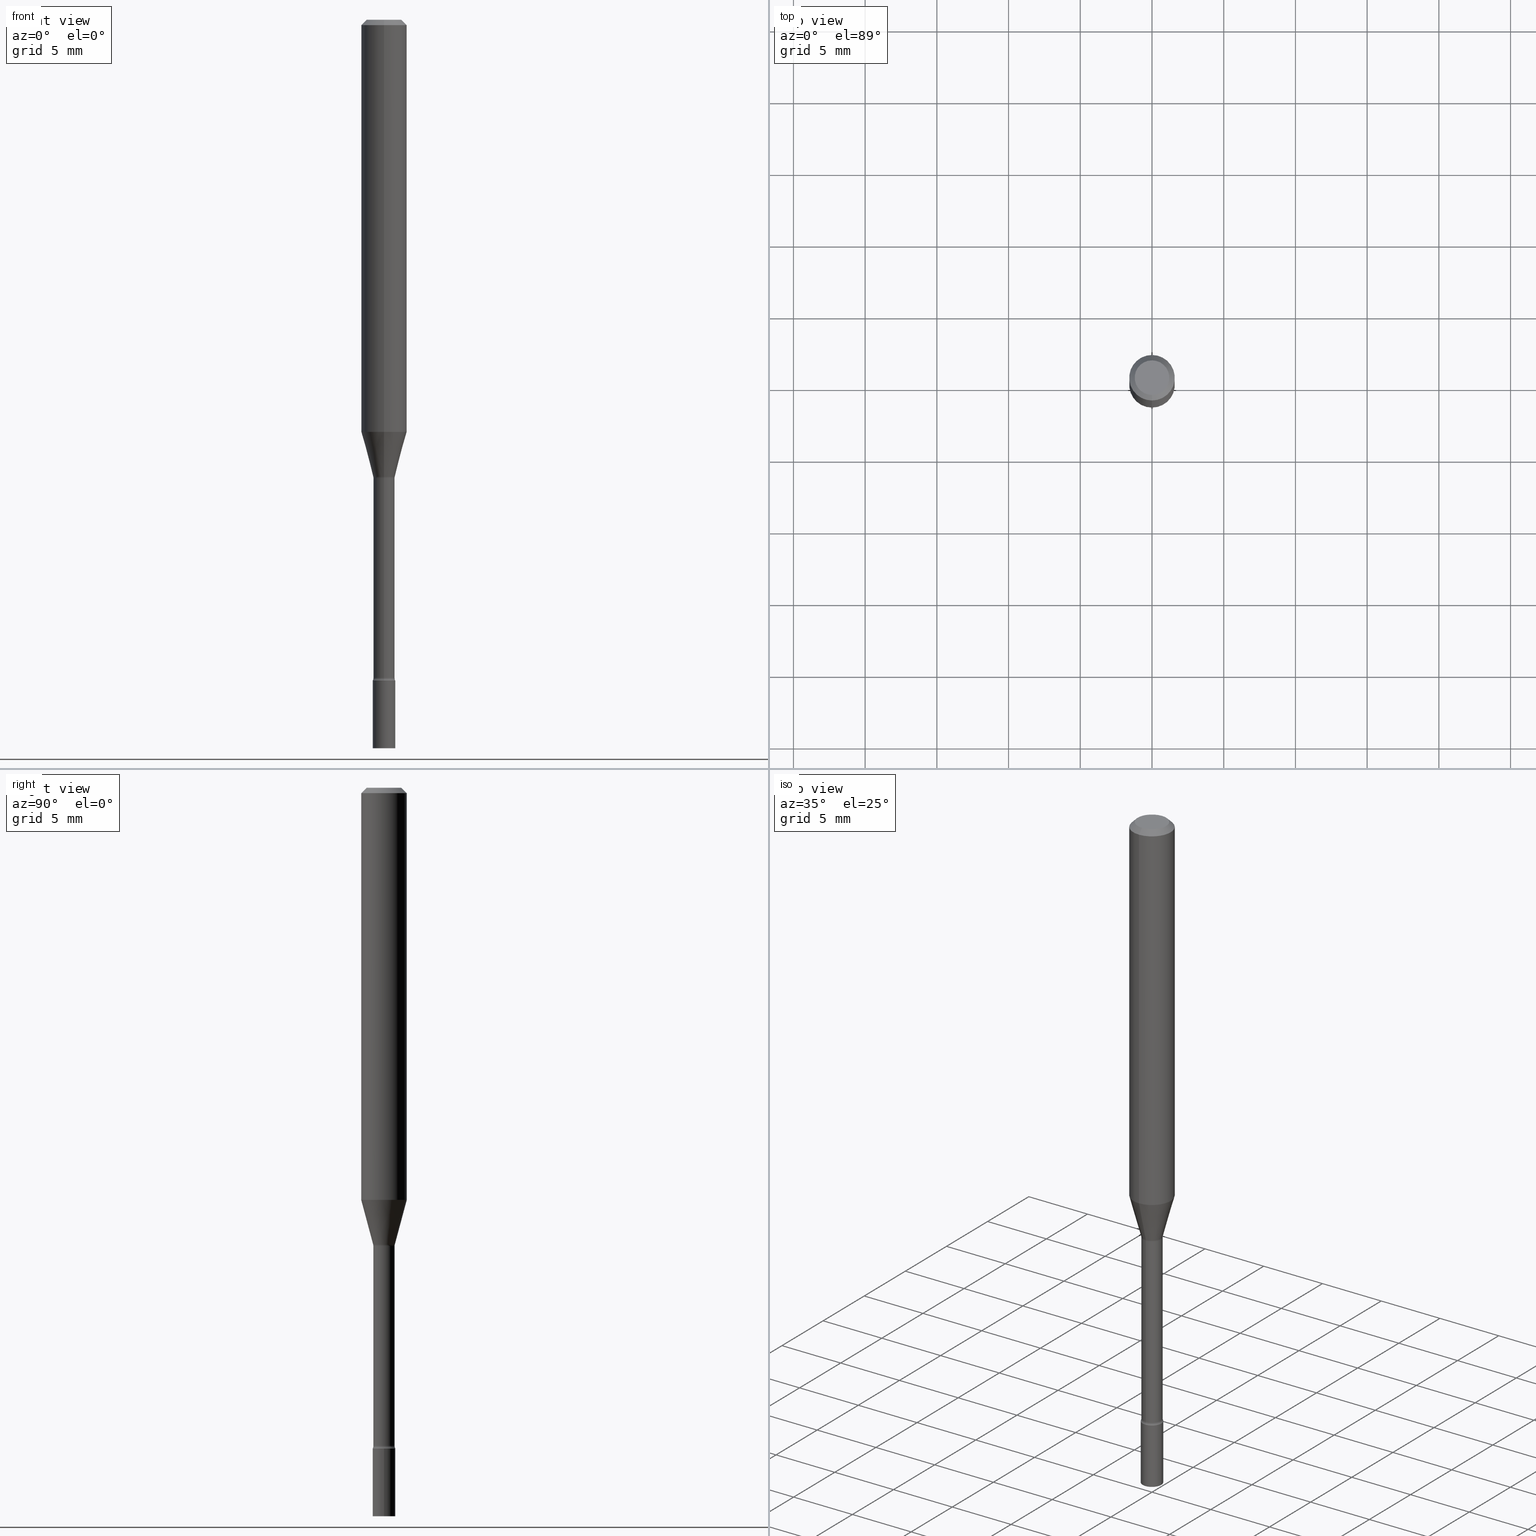
[diagram: canonical four-view strip — front | top / right | iso, engineering-drawing reading convention]
A machine part, canonical four-view strip (front | top / right | iso — engineering-drawing reading convention). The complete STEP part file that produces these views, byte-faithful:
ISO-10303-21;
HEADER;
FILE_DESCRIPTION (( 'STEP AP203' ),
    '1' );
FILE_NAME ('03440.STEP',
    '2024-03-08T21:22:28',
    ( '' ),
    ( '' ),
    'SwSTEP 2.0',
    'SolidWorks 2023',
    '' );
FILE_SCHEMA (( 'CONFIG_CONTROL_DESIGN' ));
ENDSEC;

DATA;
#1 = FACE_OUTER_BOUND ( 'NONE', #476, .T. ) ;
#2 = ORIENTED_EDGE ( 'NONE', *, *, #262, .F. ) ;
#3 = AXIS2_PLACEMENT_3D ( 'NONE', #144, #414, #63 ) ;
#4 = AXIS2_PLACEMENT_3D ( 'NONE', #123, #354, #193 ) ;
#5 = EDGE_CURVE ( 'NONE', #412, #327, #11, .T. ) ;
#6 = DIRECTION ( 'NONE',  ( -6.982962677686265922E-15, -1.000000000000000000, 0.000000000000000000 ) ) ;
#7 = VERTEX_POINT ( 'NONE', #58 ) ;
#8 = DIRECTION ( 'NONE',  ( -2.445464431541942491E-29, 3.491487603581188597E-15, 1.000000000000000000 ) ) ;
#9 = CARTESIAN_POINT ( 'NONE',  ( 4.364351673553919652E-16, 0.06249999999999995143, -0.01500000000000024751 ) ) ;
#10 = CARTESIAN_POINT ( 'NONE',  ( 2.107548809651993782E-16, 0.02966111260565959876, -1.254092501787273051 ) ) ;
#11 = LINE ( 'NONE', #242, #453 ) ;
#12 = CIRCLE ( 'NONE', #3, 0.04749999999999999362 ) ;
#13 = CC_DESIGN_SECURITY_CLASSIFICATION ( #481, ( #204 ) ) ;
#14 = DIRECTION ( 'NONE',  ( -2.445464431541942491E-29, 3.491487603581188597E-15, 1.000000000000000000 ) ) ;
#15 = ORIENTED_EDGE ( 'NONE', *, *, #214, .F. ) ;
#16 = EDGE_CURVE ( 'NONE', #511, #450, #281, .T. ) ;
#17 = CARTESIAN_POINT ( 'NONE',  ( -2.071224423039705106E-16, -0.02966111260566835564, -1.254092501787273051 ) ) ;
#18 = CYLINDRICAL_SURFACE ( 'NONE', #394, 0.06250000000000000000 ) ;
#19 = CARTESIAN_POINT ( 'NONE',  ( 4.436080414419837365E-29, -6.333547148661465016E-15, -1.813999999999999835 ) ) ;
#20 = VECTOR ( 'NONE', #325, 39.37007874015748143 ) ;
#21 = COORDINATED_UNIVERSAL_TIME_OFFSET ( 5, 0, .BEHIND. ) ;
#22 = AXIS2_PLACEMENT_3D ( 'NONE', #239, #401, #209 ) ;
#23 = FACE_OUTER_BOUND ( 'NONE', #45, .T. ) ;
#24 = DIRECTION ( 'NONE',  ( -2.445464431541942491E-29, 3.491487603581188597E-15, 1.000000000000000000 ) ) ;
#25 = CALENDAR_DATE ( 2024, 8, 3 ) ;
#26 = CARTESIAN_POINT ( 'NONE',  ( -0.03099999999999999978, -6.437986665088246838E-15, -2.000000000000000000 ) ) ;
#27 = ORIENTED_EDGE ( 'NONE', *, *, #454, .F. ) ;
#28 = APPROVAL_STATUS ( 'not_yet_approved' ) ;
#29 = CIRCLE ( 'NONE', #516, 0.03099999999999999978 ) ;
#30 = DIRECTION ( 'NONE',  ( -2.445464431541942491E-29, 3.491487603581188597E-15, 1.000000000000000000 ) ) ;
#31 = APPROVAL_PERSON_ORGANIZATION ( #142, #238, #102 ) ;
#32 = VERTEX_POINT ( 'NONE', #60 ) ;
#33 = DIRECTION ( 'NONE',  ( -6.982962677686265922E-15, -1.000000000000000000, 0.000000000000000000 ) ) ;
#34 = ORIENTED_EDGE ( 'NONE', *, *, #174, .F. ) ;
#35 = DIRECTION ( 'NONE',  ( 2.445464431541942491E-29, -3.491487603581188597E-15, -1.000000000000000000 ) ) ;
#36 = APPROVAL ( #28, 'UNSPECIFIED' ) ;
#37 = EDGE_CURVE ( 'NONE', #248, #384, #98, .T. ) ;
#38 = CARTESIAN_POINT ( 'NONE',  ( 0.000000000000000000, 0.000000000000000000, 0.000000000000000000 ) ) ;
#39 = CIRCLE ( 'NONE', #377, 0.02915000000000004046 ) ;
#40 = LOCAL_TIME ( 16, 22, 28.00000000000000000, #415 ) ;
#41 = CARTESIAN_POINT ( 'NONE',  ( 4.418432751852640684E-29, -6.308350963630715621E-15, -1.806783525791634704 ) ) ;
#42 = PRODUCT ( '03440', '03440', '', ( #263 ) ) ;
#43 = CARTESIAN_POINT ( 'NONE',  ( 3.066838606984226100E-29, -4.378648423734383663E-15, -1.254092501787273051 ) ) ;
#44 = ORIENTED_EDGE ( 'NONE', *, *, #84, .T. ) ;
#45 = EDGE_LOOP ( 'NONE', ( #332, #229, #208, #173 ) ) ;
#46 = CIRCLE ( 'NONE', #105, 0.03099999999999999978 ) ;
#47 = CC_DESIGN_APPROVAL ( #61, ( #395 ) ) ;
#48 = DIRECTION ( 'NONE',  ( -1.000000000000000000, 6.982962677686265922E-15, -4.883557194083112340E-29 ) ) ;
#49 = DIRECTION ( 'NONE',  ( -2.445468806185136877E-29, 3.491481338843145188E-15, 1.000000000000000000 ) ) ;
#50 = ADVANCED_FACE ( 'NONE', ( #374 ), #18, .T. ) ;
#51 = DIRECTION ( 'NONE',  ( 2.445464431541942491E-29, -3.491487603581188597E-15, -1.000000000000000000 ) ) ;
#52 = CARTESIAN_POINT ( 'NONE',  ( 4.436072478817083419E-29, -6.333558512896275781E-15, -1.813999999999999835 ) ) ;
#53 =( CONVERSION_BASED_UNIT ( 'INCH', #287 ) LENGTH_UNIT ( ) NAMED_UNIT ( #127 ) );
#54 = ORIENTED_EDGE ( 'NONE', *, *, #471, .F. ) ;
#55 = AXIS2_PLACEMENT_3D ( 'NONE', #41, #439, #232 ) ;
#56 = AXIS2_PLACEMENT_3D ( 'NONE', #197, #329, #6 ) ;
#57 = DIRECTION ( 'NONE',  ( 1.000000000000000000, -6.982962677686265922E-15, 4.876176775795935793E-29 ) ) ;
#58 = CARTESIAN_POINT ( 'NONE',  ( 3.840629472727447874E-16, 0.04749999999999999362, -1.947592745229183872E-16 ) ) ;
#59 = PERSON_AND_ORGANIZATION_ROLE ( 'design_owner' ) ;
#60 = CARTESIAN_POINT ( 'NONE',  ( -0.03099999999999999978, -6.437986665088246838E-15, -1.813999999999999835 ) ) ;
#61 = APPROVAL ( #413, 'UNSPECIFIED' ) ;
#62 = APPROVAL_DATE_TIME ( #499, #36 ) ;
#63 = DIRECTION ( 'NONE',  ( -6.982962677686266711E-15, -1.000000000000000000, 3.491487603581188992E-15 ) ) ;
#64 = AXIS2_PLACEMENT_3D ( 'NONE', #72, #340, #503 ) ;
#65 = PERSON_AND_ORGANIZATION ( #513, #326 ) ;
#66 = AXIS2_PLACEMENT_3D ( 'NONE', #202, #442, #446 ) ;
#67 = FACE_OUTER_BOUND ( 'NONE', #493, .T. ) ;
#68 = PERSON_AND_ORGANIZATION_ROLE ( 'classification_officer' ) ;
#69 = CARTESIAN_POINT ( 'NONE',  ( -3.082978022198049404E-16, -0.04415000000000637859, -1.806783525791634482 ) ) ;
#70 = ORIENTED_EDGE ( 'NONE', *, *, #84, .F. ) ;
#71 = PERSON_AND_ORGANIZATION_ROLE ( 'creator' ) ;
#72 = CARTESIAN_POINT ( 'NONE',  ( 4.418432751852640684E-29, -6.308350963630715621E-15, -1.806783525791634704 ) ) ;
#73 = ORIENTED_EDGE ( 'NONE', *, *, #261, .T. ) ;
#74 = CIRCLE ( 'NONE', #387, 0.01500000000000002720 ) ;
#75 = FACE_OUTER_BOUND ( 'NONE', #124, .T. ) ;
#76 = ORIENTED_EDGE ( 'NONE', *, *, #470, .T. ) ;
#77 = LINE ( 'NONE', #191, #269 ) ;
#78 = ORIENTED_EDGE ( 'NONE', *, *, #454, .T. ) ;
#79 = APPLICATION_CONTEXT ( 'configuration controlled 3d designs of mechanical parts and assemblies' ) ;
#80 = FACE_OUTER_BOUND ( 'NONE', #108, .T. ) ;
#81 = DIRECTION ( 'NONE',  ( 1.000000000000000000, -6.982962677686266711E-15, 4.876176775795935232E-29 ) ) ;
#82 = CIRCLE ( 'NONE', #227, 0.06250000000000000000 ) ;
#83 = EDGE_CURVE ( 'NONE', #302, #357, #496, .T. ) ;
#84 = EDGE_CURVE ( 'NONE', #7, #302, #165, .T. ) ;
#85 = CARTESIAN_POINT ( 'NONE',  ( 0.000000000000000000, 0.000000000000000000, 0.000000000000000000 ) ) ;
#86 = CARTESIAN_POINT ( 'NONE',  ( -4.364351673553912750E-16, -0.06250000000000005551, -0.01499999999999981209 ) ) ;
#87 = ADVANCED_FACE ( 'NONE', ( #151 ), #480, .F. ) ;
#88 = CARTESIAN_POINT ( 'NONE',  ( 3.066838606984226100E-29, -4.378648423734383663E-15, -1.254092501787273051 ) ) ;
#89 = VERTEX_POINT ( 'NONE', #107 ) ;
#90 = CIRCLE ( 'NONE', #464, 0.02966111260566397720 ) ;
#91 = VECTOR ( 'NONE', #14, 39.37007874015748143 ) ;
#92 = CARTESIAN_POINT ( 'NONE',  ( 4.436080414419837365E-29, -6.333547148661465016E-15, -1.813999999999999835 ) ) ;
#93 = ORIENTED_EDGE ( 'NONE', *, *, #245, .T. ) ;
#94 = PLANE ( 'NONE',  #251 ) ;
#95 = ORIENTED_EDGE ( 'NONE', *, *, #206, .F. ) ;
#96 = CARTESIAN_POINT ( 'NONE',  ( 4.890937612370273194E-29, -6.982962677686291165E-15, -2.000000000000000000 ) ) ;
#97 = ORIENTED_EDGE ( 'NONE', *, *, #135, .T. ) ;
#98 = CIRCLE ( 'NONE', #275, 0.03099999999999999978 ) ;
#99 = CONICAL_SURFACE ( 'NONE', #317, 0.02966111260566397720, 0.2617993877991502960 ) ;
#100 = APPROVAL_STATUS ( 'not_yet_approved' ) ;
#101 = DIRECTION ( 'NONE',  ( -2.445464431541942491E-29, 3.491487603581188597E-15, 1.000000000000000000 ) ) ;
#102 = APPROVAL_ROLE ( '' ) ;
#103 = FACE_OUTER_BOUND ( 'NONE', #137, .T. ) ;
#104 = CARTESIAN_POINT ( 'NONE',  ( 4.436072478817083419E-29, -6.333558512896275781E-15, -1.813999999999999835 ) ) ;
#105 = AXIS2_PLACEMENT_3D ( 'NONE', #313, #230, #474 ) ;
#106 = DATE_AND_TIME ( #220, #455 ) ;
#107 = CARTESIAN_POINT ( 'NONE',  ( 4.440892098500899305E-16, 0.06249999999999602401, -1.131536105567578554 ) ) ;
#108 = EDGE_LOOP ( 'NONE', ( #293, #76, #222, #456 ) ) ;
#109 = ADVANCED_FACE ( 'NONE', ( #103 ), #418, .T. ) ;
#110 = CARTESIAN_POINT ( 'NONE',  ( 0.000000000000000000, 0.000000000000000000, 0.000000000000000000 ) ) ;
#111 = ORIENTED_EDGE ( 'NONE', *, *, #389, .T. ) ;
#112 = DIRECTION ( 'NONE',  ( -2.445464431541942491E-29, 3.491487603581188597E-15, 1.000000000000000000 ) ) ;
#113 = ORIENTED_EDGE ( 'NONE', *, *, #348, .F. ) ;
#114 = CONICAL_SURFACE ( 'NONE', #400, 0.06250000000000000000, 0.7853981633974483900 ) ;
#115 = CC_DESIGN_PERSON_AND_ORGANIZATION_ASSIGNMENT ( #509, #150, ( #204 ) ) ;
#116 = CARTESIAN_POINT ( 'NONE',  ( 4.440892098500904235E-16, 0.06249999999999995143, -0.01500000000000024751 ) ) ;
#117 = ADVANCED_FACE ( 'NONE', ( #23 ), #147, .F. ) ;
#118 = EDGE_LOOP ( 'NONE', ( #495, #93 ) ) ;
#119 = FACE_OUTER_BOUND ( 'NONE', #309, .T. ) ;
#120 = DIRECTION ( 'NONE',  ( -2.445464431541942491E-29, 3.491487603581188597E-15, 1.000000000000000000 ) ) ;
#121 = CARTESIAN_POINT ( 'NONE',  ( 3.668196647312921145E-31, -5.237231405371794162E-17, -0.01500000000000003067 ) ) ;
#122 = AXIS2_PLACEMENT_3D ( 'NONE', #492, #48, #451 ) ;
#123 = CARTESIAN_POINT ( 'NONE',  ( 7.070721304165782723E-46, -1.009515225960824939E-31, -2.891361335281196142E-17 ) ) ;
#124 = EDGE_LOOP ( 'NONE', ( #175, #406, #265, #483 ) ) ;
#125 = DIRECTION ( 'NONE',  ( -6.982962677686265133E-15, -1.000000000000000000, 0.000000000000000000 ) ) ;
#126 = EDGE_LOOP ( 'NONE', ( #54, #27 ) ) ;
#127 = DIMENSIONAL_EXPONENTS ( 1.000000000000000000, 0.000000000000000000, 0.000000000000000000, 0.000000000000000000, 0.000000000000000000, 0.000000000000000000, 0.000000000000000000 ) ;
#128 = LINE ( 'NONE', #207, #360 ) ;
#129 = ORIENTED_EDGE ( 'NONE', *, *, #16, .T. ) ;
#130 = EDGE_CURVE ( 'NONE', #392, #412, #90, .T. ) ;
#131 = AXIS2_PLACEMENT_3D ( 'NONE', #96, #370, #398 ) ;
#132 = VERTEX_POINT ( 'NONE', #179 ) ;
#133 = DIRECTION ( 'NONE',  ( 7.105427357601001859E-15, 1.000000000000000000, 0.000000000000000000 ) ) ;
#134 = ORIENTED_EDGE ( 'NONE', *, *, #285, .F. ) ;
#135 = EDGE_CURVE ( 'NONE', #89, #327, #409, .T. ) ;
#136 = PLANE ( 'NONE',  #419 ) ;
#137 = EDGE_LOOP ( 'NONE', ( #231, #410, #111, #228 ) ) ;
#138 = AXIS2_PLACEMENT_3D ( 'NONE', #356, #120, #33 ) ;
#139 = CIRCLE ( 'NONE', #56, 0.02914999999999999883 ) ;
#140 = APPLICATION_PROTOCOL_DEFINITION ( 'international standard', 'config_control_design', 1994, #358 ) ;
#141 = DIRECTION ( 'NONE',  ( 7.105427357601001859E-15, 1.000000000000000000, 0.000000000000000000 ) ) ;
#142 = PERSON_AND_ORGANIZATION ( #513, #326 ) ;
#143 = EDGE_CURVE ( 'NONE', #250, #345, #422, .T. ) ;
#144 = CARTESIAN_POINT ( 'NONE',  ( 7.070721304165782723E-46, -1.009515225960824939E-31, -2.891361335281196142E-17 ) ) ;
#145 = CARTESIAN_POINT ( 'NONE',  ( 0.000000000000000000, 0.000000000000000000, 0.000000000000000000 ) ) ;
#146 = DIRECTION ( 'NONE',  ( -6.982962677686265133E-15, -1.000000000000000000, 0.000000000000000000 ) ) ;
#147 = TOROIDAL_SURFACE ( 'NONE', #283, 0.04414999999999999480, 0.01500000000000001853 ) ;
#148 = AXIS2_PLACEMENT_3D ( 'NONE', #145, #336, #385 ) ;
#149 = ORIENTED_EDGE ( 'NONE', *, *, #172, .F. ) ;
#150 = PERSON_AND_ORGANIZATION_ROLE ( 'creator' ) ;
#151 = FACE_OUTER_BOUND ( 'NONE', #473, .T. ) ;
#152 = CC_DESIGN_PERSON_AND_ORGANIZATION_ASSIGNMENT ( #65, #59, ( #42 ) ) ;
#153 = EDGE_CURVE ( 'NONE', #365, #248, #308, .T. ) ;
#154 = DIRECTION ( 'NONE',  ( -2.445464431541942491E-29, 3.491487603581188597E-15, 1.000000000000000000 ) ) ;
#155 = ORIENTED_EDGE ( 'NONE', *, *, #153, .F. ) ;
#156 = AXIS2_PLACEMENT_3D ( 'NONE', #199, #307, #320 ) ;
#157 = CIRCLE ( 'NONE', #122, 0.01500000000000001853 ) ;
#158 = CARTESIAN_POINT ( 'NONE',  ( -3.773273898774340269E-16, -0.04749999999999999362, 1.369320478172945137E-16 ) ) ;
#159 = CARTESIAN_POINT ( 'NONE',  ( -2.164718430082299331E-16, -0.03100000000000634887, -1.813999999999999835 ) ) ;
#160 = PLANE ( 'NONE',  #156 ) ;
#161 = CONICAL_SURFACE ( 'NONE', #417, 0.02966111260566397720, 0.2617993877991502960 ) ;
#162 = APPROVAL_PERSON_ORGANIZATION ( #223, #36, #421 ) ;
#163 = ORIENTED_EDGE ( 'NONE', *, *, #379, .T. ) ;
#164 = FACE_OUTER_BOUND ( 'NONE', #126, .T. ) ;
#165 = LINE ( 'NONE', #9, #20 ) ;
#166 = CARTESIAN_POINT ( 'NONE',  ( 0.03099999999999999978, -7.199434520694564708E-15, -2.000000000000000000 ) ) ;
#167 = ORIENTED_EDGE ( 'NONE', *, *, #83, .F. ) ;
#168 = DIRECTION ( 'NONE',  ( 6.982962677686265922E-15, 1.000000000000000000, -3.483106191921935554E-15 ) ) ;
#169 = ORIENTED_EDGE ( 'NONE', *, *, #83, .T. ) ;
#170 = CIRCLE ( 'NONE', #138, 0.02914999999999999883 ) ;
#171 = DIRECTION ( 'NONE',  ( 2.438088387897960049E-29, -3.491481338843145188E-15, -1.000000000000000000 ) ) ;
#172 = EDGE_CURVE ( 'NONE', #250, #384, #74, .T. ) ;
#173 = ORIENTED_EDGE ( 'NONE', *, *, #462, .F. ) ;
#174 = EDGE_CURVE ( 'NONE', #327, #357, #221, .T. ) ;
#175 = ORIENTED_EDGE ( 'NONE', *, *, #407, .F. ) ;
#176 = CARTESIAN_POINT ( 'NONE',  ( 3.076338101710126374E-29, -4.392195495165068238E-15, -1.257974787463810973 ) ) ;
#177 = CIRCLE ( 'NONE', #240, 0.06250000000000000000 ) ;
#178 = AXIS2_PLACEMENT_3D ( 'NONE', #88, #8, #125 ) ;
#179 = CARTESIAN_POINT ( 'NONE',  ( -2.035533620545238968E-16, -0.02915000000000439115, -1.257974787463810973 ) ) ;
#180 = PERSON_AND_ORGANIZATION ( #513, #326 ) ;
#181 = EDGE_CURVE ( 'NONE', #271, #7, #12, .T. ) ;
#182 = CARTESIAN_POINT ( 'NONE',  ( 2.071232074740693191E-16, 0.02915000000000001965, -1.017768636443917116E-16 ) ) ;
#183 = DATE_AND_TIME ( #25, #319 ) ;
#184 = DIRECTION ( 'NONE',  ( -2.445464431541942491E-29, 3.491487603581188597E-15, 1.000000000000000000 ) ) ;
#185 = ORIENTED_EDGE ( 'NONE', *, *, #389, .F. ) ;
#186 = VECTOR ( 'NONE', #335, 39.37007874015748143 ) ;
#187 = COORDINATED_UNIVERSAL_TIME_OFFSET ( 5, 0, .BEHIND. ) ;
#188 = AXIS2_PLACEMENT_3D ( 'NONE', #403, #51, #168 ) ;
#189 = DIRECTION ( 'NONE',  ( 1.000000000000000000, -7.105427357601001070E-15, 4.926315585262996127E-29 ) ) ;
#190 = ORIENTED_EDGE ( 'NONE', *, *, #328, .T. ) ;
#191 = CARTESIAN_POINT ( 'NONE',  ( -4.287811248607203282E-16, -0.06250000000000005551, -0.01499999999999981209 ) ) ;
#192 = EDGE_LOOP ( 'NONE', ( #212, #399, #323, #34 ) ) ;
#193 = DIRECTION ( 'NONE',  ( -6.982962677686266711E-15, -1.000000000000000000, 3.491487603581188992E-15 ) ) ;
#194 = MANIFOLD_SOLID_BREP ( 'Body-Move/Copy2[2]', #416 ) ;
#195 = CIRCLE ( 'NONE', #445, 0.03099999999999999978 ) ;
#196 = VECTOR ( 'NONE', #247, 39.37007874015748143 ) ;
#197 = CARTESIAN_POINT ( 'NONE',  ( 3.076332598519284209E-29, -4.392203376047575769E-15, -1.257974787463810973 ) ) ;
#198 = ADVANCED_FACE ( 'NONE', ( #383 ), #161, .T. ) ;
#199 = CARTESIAN_POINT ( 'NONE',  ( 3.316907271900976096E-16, 0.04749999999999999362, -1.803024678465124435E-16 ) ) ;
#200 = CARTESIAN_POINT ( 'NONE',  ( 0.000000000000000000, 0.000000000000000000, 0.000000000000000000 ) ) ;
#201 = VERTEX_POINT ( 'NONE', #26 ) ;
#202 = CARTESIAN_POINT ( 'NONE',  ( 4.890937612370273194E-29, -6.982962677686291165E-15, -2.000000000000000000 ) ) ;
#203 = AXIS2_PLACEMENT_3D ( 'NONE', #255, #465, #303 ) ;
#204 = PRODUCT_DEFINITION_FORMATION_WITH_SPECIFIED_SOURCE ( 'ANY', '', #42, .NOT_KNOWN. ) ;
#205 = EDGE_LOOP ( 'NONE', ( #288, #95 ) ) ;
#206 = EDGE_CURVE ( 'NONE', #384, #248, #29, .T. ) ;
#207 = CARTESIAN_POINT ( 'NONE',  ( -0.03099999999999999978, 2.202682480856310560E-16, -1.524869877979020612E-30 ) ) ;
#208 = ORIENTED_EDGE ( 'NONE', *, *, #367, .T. ) ;
#209 = DIRECTION ( 'NONE',  ( -6.982962677686265922E-15, -1.000000000000000000, 3.491487603581188597E-15 ) ) ;
#210 = DIRECTION ( 'NONE',  ( -2.445464431541942491E-29, 3.491487603581188597E-15, 1.000000000000000000 ) ) ;
#211 = EDGE_CURVE ( 'NONE', #327, #89, #82, .T. ) ;
#212 = ORIENTED_EDGE ( 'NONE', *, *, #211, .T. ) ;
#213 = CARTESIAN_POINT ( 'NONE',  ( 0.03099999999999999978, -2.164718430082742572E-16, 1.511614800496739984E-30 ) ) ;
#214 = EDGE_CURVE ( 'NONE', #250, #365, #256, .T. ) ;
#215 = CARTESIAN_POINT ( 'NONE',  ( 3.668196647312921145E-31, -5.237231405371794162E-17, -0.01500000000000003067 ) ) ;
#216 = APPROVAL_DATE_TIME ( #183, #238 ) ;
#217 = DIRECTION ( 'NONE',  ( -6.982962677686265922E-15, -1.000000000000000000, 4.370956789862821150E-15 ) ) ;
#218 = DATE_AND_TIME ( #343, #234 ) ;
#219 = CARTESIAN_POINT ( 'NONE',  ( 3.076338101710126374E-29, -4.392195495165068238E-15, -1.257974787463810973 ) ) ;
#220 = CALENDAR_DATE ( 2024, 8, 3 ) ;
#221 = LINE ( 'NONE', #472, #489 ) ;
#222 = ORIENTED_EDGE ( 'NONE', *, *, #211, .F. ) ;
#223 = PERSON_AND_ORGANIZATION ( #513, #326 ) ;
#224 = ADVANCED_FACE ( 'NONE', ( #67 ), #468, .T. ) ;
#225 = DIRECTION ( 'NONE',  ( -2.445464431541942491E-29, 3.491487603581188597E-15, 1.000000000000000000 ) ) ;
#226 = ADVANCED_FACE ( 'NONE', ( #75 ), #267, .F. ) ;
#227 = AXIS2_PLACEMENT_3D ( 'NONE', #501, #298, #460 ) ;
#228 = ORIENTED_EDGE ( 'NONE', *, *, #367, .F. ) ;
#229 = ORIENTED_EDGE ( 'NONE', *, *, #407, .T. ) ;
#230 = DIRECTION ( 'NONE',  ( -2.445468806185136597E-29, 3.491481338843145583E-15, 1.000000000000000000 ) ) ;
#231 = ORIENTED_EDGE ( 'NONE', *, *, #143, .F. ) ;
#232 = DIRECTION ( 'NONE',  ( -6.982962677686265922E-15, -1.000000000000000000, 3.491487603581188597E-15 ) ) ;
#233 = AXIS2_PLACEMENT_3D ( 'NONE', #428, #264, #344 ) ;
#234 = LOCAL_TIME ( 16, 22, 28.00000000000000000, #502 ) ;
#235 = CYLINDRICAL_SURFACE ( 'NONE', #318, 0.06250000000000000000 ) ;
#236 = DIRECTION ( 'NONE',  ( -4.851104656540964275E-15, -0.7071067811865500152, -0.7071067811865450192 ) ) ;
#237 =( NAMED_UNIT ( * ) SI_UNIT ( $, .STERADIAN. ) SOLID_ANGLE_UNIT ( ) );
#238 = APPROVAL ( #100, 'UNSPECIFIED' ) ;
#239 = CARTESIAN_POINT ( 'NONE',  ( 2.164718430083186060E-16, 0.03099999999999366457, -1.813999999999999835 ) ) ;
#240 = AXIS2_PLACEMENT_3D ( 'NONE', #121, #277, #432 ) ;
#241 = APPROVAL_PERSON_ORGANIZATION ( #180, #61, #411 ) ;
#242 = CARTESIAN_POINT ( 'NONE',  ( -2.071224423039705106E-16, -0.02966111260566835564, -1.254092501787273051 ) ) ;
#243 = CARTESIAN_POINT ( 'NONE',  ( 2.202682480856754541E-16, 0.03099999999999368192, -1.813999999999999835 ) ) ;
#244 = EDGE_LOOP ( 'NONE', ( #426, #467, #441, #469 ) ) ;
#245 = EDGE_CURVE ( 'NONE', #32, #450, #195, .T. ) ;
#246 = EDGE_CURVE ( 'NONE', #89, #302, #353, .T. ) ;
#247 = DIRECTION ( 'NONE',  ( 1.839019923739601104E-15, 0.2588190451025250693, 0.9659258262890670910 ) ) ;
#248 = VERTEX_POINT ( 'NONE', #159 ) ;
#249 = LINE ( 'NONE', #282, #91 ) ;
#250 = VERTEX_POINT ( 'NONE', #397 ) ;
#251 = AXIS2_PLACEMENT_3D ( 'NONE', #322, #171, #364 ) ;
#252 = DIRECTION ( 'NONE',  ( -6.982962677686265922E-15, -1.000000000000000000, 3.491487603581188597E-15 ) ) ;
#253 = DIRECTION ( 'NONE',  ( -1.000000000000000000, 6.982962677686265922E-15, -4.883557194083112340E-29 ) ) ;
#254 = PERSON_AND_ORGANIZATION ( #513, #326 ) ;
#255 = CARTESIAN_POINT ( 'NONE',  ( 4.418424847819386153E-29, -6.308362282656206096E-15, -1.806783525791634704 ) ) ;
#256 = CIRCLE ( 'NONE', #203, 0.02915000000000004046 ) ;
#257 = CC_DESIGN_APPROVAL ( #36, ( #204 ) ) ;
#258 = APPROVAL_DATE_TIME ( #106, #61 ) ;
#259 = DIRECTION ( 'NONE',  ( -6.982962677686265922E-15, -1.000000000000000000, 3.491487603581188597E-15 ) ) ;
#260 = ORIENTED_EDGE ( 'NONE', *, *, #471, .T. ) ;
#261 = EDGE_CURVE ( 'NONE', #365, #250, #39, .T. ) ;
#262 = EDGE_CURVE ( 'NONE', #132, #345, #170, .T. ) ;
#263 = MECHANICAL_CONTEXT ( 'NONE', #358, 'mechanical' ) ;
#264 = DIRECTION ( 'NONE',  ( -2.445464431541942491E-29, 3.491487603581188597E-15, 1.000000000000000000 ) ) ;
#265 = ORIENTED_EDGE ( 'NONE', *, *, #462, .T. ) ;
#266 = DIRECTION ( 'NONE',  ( -6.982962677686265922E-15, -1.000000000000000000, 0.000000000000000000 ) ) ;
#267 = TOROIDAL_SURFACE ( 'NONE', #371, 0.04414999999999999480, 0.01500000000000001853 ) ;
#268 = ORIENTED_EDGE ( 'NONE', *, *, #206, .T. ) ;
#269 = VECTOR ( 'NONE', #236, 39.37007874015748143 ) ;
#270 = DIRECTION ( 'NONE',  ( 6.982962677686265922E-15, 1.000000000000000000, -3.483106191921935554E-15 ) ) ;
#271 = VERTEX_POINT ( 'NONE', #158 ) ;
#272 = FACE_OUTER_BOUND ( 'NONE', #363, .T. ) ;
#273 = ADVANCED_FACE ( 'NONE', ( #119 ), #235, .T. ) ;
#274 = FACE_OUTER_BOUND ( 'NONE', #402, .T. ) ;
#275 = AXIS2_PLACEMENT_3D ( 'NONE', #52, #210, #372 ) ;
#276 = AXIS2_PLACEMENT_3D ( 'NONE', #38, #278, #434 ) ;
#277 = DIRECTION ( 'NONE',  ( -2.445464431541942491E-29, 3.491487603581188597E-15, 1.000000000000000000 ) ) ;
#278 = DIRECTION ( 'NONE',  ( -2.445468806185136597E-29, 3.491481338843145583E-15, 1.000000000000000000 ) ) ;
#279 = ORIENTED_EDGE ( 'NONE', *, *, #37, .T. ) ;
#280 = CARTESIAN_POINT ( 'NONE',  ( 0.03099999999999999978, -6.550018991669739348E-15, -1.813999999999999835 ) ) ;
#281 = LINE ( 'NONE', #213, #292 ) ;
#282 = CARTESIAN_POINT ( 'NONE',  ( -2.035533620545548103E-16, -0.02915000000000001965, 1.017768636443917116E-16 ) ) ;
#283 = AXIS2_PLACEMENT_3D ( 'NONE', #219, #30, #259 ) ;
#284 = EDGE_LOOP ( 'NONE', ( #433, #488, #190, #70 ) ) ;
#285 = EDGE_CURVE ( 'NONE', #450, #32, #46, .T. ) ;
#286 = UNCERTAINTY_MEASURE_WITH_UNIT (LENGTH_MEASURE( 1.000000000000000082E-05 ), #53, 'distance_accuracy_value', 'NONE');
#287 = LENGTH_MEASURE_WITH_UNIT ( LENGTH_MEASURE( 0.02539999999999999897 ), #373 );
#288 = ORIENTED_EDGE ( 'NONE', *, *, #37, .F. ) ;
#289 = FACE_OUTER_BOUND ( 'NONE', #205, .T. ) ;
#290 = ORIENTED_EDGE ( 'NONE', *, *, #172, .T. ) ;
#291 = DESIGN_CONTEXT ( 'detailed design', #79, 'design' ) ;
#292 = VECTOR ( 'NONE', #49, 39.37007874015748143 ) ;
#293 = ORIENTED_EDGE ( 'NONE', *, *, #437, .T. ) ;
#294 = AXIS2_PLACEMENT_3D ( 'NONE', #324, #449, #133 ) ;
#295 = APPLICATION_PROTOCOL_DEFINITION ( 'international standard', 'config_control_design', 1994, #79 ) ;
#296 = DIRECTION ( 'NONE',  ( -6.982962677686265922E-15, -1.000000000000000000, 3.491487603581188597E-15 ) ) ;
#297 = PERSON_AND_ORGANIZATION_ROLE ( 'design_supplier' ) ;
#298 = DIRECTION ( 'NONE',  ( -2.445464431541942491E-29, 3.491487603581188597E-15, 1.000000000000000000 ) ) ;
#299 = CALENDAR_DATE ( 2024, 8, 3 ) ;
#300 = DIRECTION ( 'NONE',  ( -6.982962677686266711E-15, -1.000000000000000000, 3.491487603581188597E-15 ) ) ;
#301 = ADVANCED_FACE ( 'NONE', ( #80 ), #99, .T. ) ;
#302 = VERTEX_POINT ( 'NONE', #116 ) ;
#303 = DIRECTION ( 'NONE',  ( -6.982962677686266711E-15, -1.000000000000000000, 0.000000000000000000 ) ) ;
#304 = PERSON_AND_ORGANIZATION ( #513, #326 ) ;
#305 = DIRECTION ( 'NONE',  ( -6.982962677686267499E-15, -1.000000000000000000, 0.000000000000000000 ) ) ;
#306 = ORIENTED_EDGE ( 'NONE', *, *, #16, .F. ) ;
#307 = DIRECTION ( 'NONE',  ( 2.445464431541942210E-29, -3.491487603581188597E-15, -1.000000000000000000 ) ) ;
#308 = CIRCLE ( 'NONE', #333, 0.01500000000000002720 ) ;
#309 = EDGE_LOOP ( 'NONE', ( #508, #97, #390, #167 ) ) ;
#310 = LOCAL_TIME ( 16, 22, 28.00000000000000000, #187 ) ;
#311 = ADVANCED_FACE ( 'NONE', ( #1 ), #505, .F. ) ;
#312 = CARTESIAN_POINT ( 'NONE',  ( -2.035533620545107573E-16, -0.02915000000000635139, -1.806783525791634704 ) ) ;
#313 = CARTESIAN_POINT ( 'NONE',  ( 4.436080414419837365E-29, -6.333547148661465016E-15, -1.813999999999999835 ) ) ;
#314 = DIRECTION ( 'NONE',  ( -2.445464431541942491E-29, 3.491487603581188597E-15, 1.000000000000000000 ) ) ;
#315 = ADVANCED_FACE ( 'NONE', ( #349 ), #114, .T. ) ;
#316 = ADVANCED_FACE ( 'NONE', ( #274 ), #393, .T. ) ;
#317 = AXIS2_PLACEMENT_3D ( 'NONE', #43, #154, #479 ) ;
#318 = AXIS2_PLACEMENT_3D ( 'NONE', #200, #314, #512 ) ;
#319 = LOCAL_TIME ( 16, 22, 28.00000000000000000, #463 ) ;
#320 = DIRECTION ( 'NONE',  ( 6.982962677686265922E-15, 1.000000000000000000, -3.491487603581188597E-15 ) ) ;
#321 = ORIENTED_EDGE ( 'NONE', *, *, #181, .T. ) ;
#322 = CARTESIAN_POINT ( 'NONE',  ( 2.164718430083231419E-16, 0.03099999999999301578, -2.000000000000000000 ) ) ;
#323 = ORIENTED_EDGE ( 'NONE', *, *, #328, .F. ) ;
#324 = CARTESIAN_POINT ( 'NONE',  ( 3.137046178381148621E-16, 0.04414999999999560248, -1.257974787463811195 ) ) ;
#325 = DIRECTION ( 'NONE',  ( 4.937700262164548042E-15, 0.7071067811865451302, -0.7071067811865499042 ) ) ;
#326 = ORGANIZATION ( 'UNSPECIFIED', 'UNSPECIFIED', '' ) ;
#327 = VERTEX_POINT ( 'NONE', #435 ) ;
#328 = EDGE_CURVE ( 'NONE', #357, #302, #177, .T. ) ;
#329 = DIRECTION ( 'NONE',  ( -2.445464431541942491E-29, 3.491487603581188597E-15, 1.000000000000000000 ) ) ;
#330 = ORIENTED_EDGE ( 'NONE', *, *, #339, .F. ) ;
#331 =( NAMED_UNIT ( * ) PLANE_ANGLE_UNIT ( ) SI_UNIT ( $, .RADIAN. ) );
#332 = ORIENTED_EDGE ( 'NONE', *, *, #130, .F. ) ;
#333 = AXIS2_PLACEMENT_3D ( 'NONE', #69, #253, #305 ) ;
#334 = DATE_TIME_ROLE ( 'creation_date' ) ;
#335 = DIRECTION ( 'NONE',  ( -2.445464431541942491E-29, 3.491487603581188597E-15, 1.000000000000000000 ) ) ;
#336 = DIRECTION ( 'NONE',  ( 0.000000000000000000, 0.000000000000000000, 1.000000000000000000 ) ) ;
#337 = ADVANCED_FACE ( 'NONE', ( #272 ), #160, .F. ) ;
#338 = CARTESIAN_POINT ( 'NONE',  ( 3.066838606984226100E-29, -4.378648423734383663E-15, -1.254092501787273051 ) ) ;
#339 = EDGE_CURVE ( 'NONE', #271, #357, #77, .T. ) ;
#340 = DIRECTION ( 'NONE',  ( -2.445464431541942491E-29, 3.491487603581188597E-15, 1.000000000000000000 ) ) ;
#341 = AXIS2_PLACEMENT_3D ( 'NONE', #215, #491, #376 ) ;
#342 = CIRCLE ( 'NONE', #178, 0.02966111260566397720 ) ;
#343 = CALENDAR_DATE ( 2024, 8, 3 ) ;
#344 = DIRECTION ( 'NONE',  ( -6.982962677686266711E-15, -1.000000000000000000, 3.491487603581188597E-15 ) ) ;
#345 = VERTEX_POINT ( 'NONE', #482 ) ;
#346 = CARTESIAN_POINT ( 'NONE',  ( 4.440892098500625669E-16, 0.06250000000000000000, -2.182179752238242873E-16 ) ) ;
#347 = ORIENTED_EDGE ( 'NONE', *, *, #379, .F. ) ;
#348 = EDGE_CURVE ( 'NONE', #7, #271, #466, .T. ) ;
#349 = FACE_OUTER_BOUND ( 'NONE', #486, .T. ) ;
#350 = CLOSED_SHELL ( 'NONE', ( #316, #519, #355, #429 ) ) ;
#351 = AXIS2_PLACEMENT_3D ( 'NONE', #110, #425, #300 ) ;
#352 = CIRCLE ( 'NONE', #131, 0.03099999999999999978 ) ;
#353 = LINE ( 'NONE', #346, #359 ) ;
#354 = DIRECTION ( 'NONE',  ( -2.445464431541942491E-29, 3.491487603581188597E-15, 1.000000000000000000 ) ) ;
#355 = ADVANCED_FACE ( 'NONE', ( #520 ), #515, .T. ) ;
#356 = CARTESIAN_POINT ( 'NONE',  ( 3.076332598519284209E-29, -4.392203376047575769E-15, -1.257974787463810973 ) ) ;
#357 = VERTEX_POINT ( 'NONE', #86 ) ;
#358 = APPLICATION_CONTEXT ( 'configuration controlled 3d designs of mechanical parts and assemblies' ) ;
#359 = VECTOR ( 'NONE', #396, 39.37007874015748143 ) ;
#360 = VECTOR ( 'NONE', #485, 39.37007874015748143 ) ;
#361 = MANIFOLD_SOLID_BREP ( 'Body-Move/Copy2[1]', #350 ) ;
#362 = PLANE ( 'NONE',  #22 ) ;
#363 = EDGE_LOOP ( 'NONE', ( #369, #321 ) ) ;
#364 = DIRECTION ( 'NONE',  ( -1.000000000000000000, 6.982962677686265922E-15, -4.876176775795935793E-29 ) ) ;
#365 = VERTEX_POINT ( 'NONE', #312 ) ;
#366 = CC_DESIGN_PERSON_AND_ORGANIZATION_ASSIGNMENT ( #304, #297, ( #204 ) ) ;
#367 = EDGE_CURVE ( 'NONE', #345, #132, #139, .T. ) ;
#368 = CARTESIAN_POINT ( 'NONE',  ( 3.274220454076449378E-16, 0.02966111260565960223, -1.254092501787273051 ) ) ;
#369 = ORIENTED_EDGE ( 'NONE', *, *, #348, .T. ) ;
#370 = DIRECTION ( 'NONE',  ( -2.445468806185136597E-29, 3.491481338843145583E-15, 1.000000000000000000 ) ) ;
#371 = AXIS2_PLACEMENT_3D ( 'NONE', #176, #498, #296 ) ;
#372 = DIRECTION ( 'NONE',  ( -6.982962677686265922E-15, -1.000000000000000000, 0.000000000000000000 ) ) ;
#373 =( LENGTH_UNIT ( ) NAMED_UNIT ( * ) SI_UNIT ( $, .METRE. ) );
#374 = FACE_OUTER_BOUND ( 'NONE', #192, .T. ) ;
#375 = SECURITY_CLASSIFICATION_LEVEL ( 'unclassified' ) ;
#376 = DIRECTION ( 'NONE',  ( -6.982962677686265922E-15, -1.000000000000000000, 3.483106191921935554E-15 ) ) ;
#377 = AXIS2_PLACEMENT_3D ( 'NONE', #440, #391, #518 ) ;
#378 = DIRECTION ( 'NONE',  ( -2.445464431541942491E-29, 3.491487603581188597E-15, 1.000000000000000000 ) ) ;
#379 = EDGE_CURVE ( 'NONE', #201, #32, #128, .T. ) ;
#380 = CARTESIAN_POINT ( 'NONE',  ( 2.767131299171001299E-29, -3.950744285593735369E-15, -1.131536105567578332 ) ) ;
#381 = DATE_AND_TIME ( #299, #40 ) ;
#382 = ADVANCED_FACE ( 'NONE', ( #289 ), #362, .F. ) ;
#383 = FACE_OUTER_BOUND ( 'NONE', #244, .T. ) ;
#384 = VERTEX_POINT ( 'NONE', #243 ) ;
#385 = DIRECTION ( 'NONE',  ( 1.000000000000000000, 0.000000000000000000, 0.000000000000000000 ) ) ;
#386 = CARTESIAN_POINT ( 'NONE',  ( 3.137046178381288151E-16, 0.04414999999999375674, -1.806783525791634926 ) ) ;
#387 = AXIS2_PLACEMENT_3D ( 'NONE', #386, #189, #141 ) ;
#388 = DIRECTION ( 'NONE',  ( 1.000000000000000000, -6.982962677686270655E-15, 0.000000000000000000 ) ) ;
#389 = EDGE_CURVE ( 'NONE', #365, #132, #249, .T. ) ;
#390 = ORIENTED_EDGE ( 'NONE', *, *, #174, .T. ) ;
#391 = DIRECTION ( 'NONE',  ( -2.445464431541942491E-29, 3.491487603581188597E-15, 1.000000000000000000 ) ) ;
#392 = VERTEX_POINT ( 'NONE', #368 ) ;
#393 = CYLINDRICAL_SURFACE ( 'NONE', #475, 0.03099999999999999978 ) ;
#394 = AXIS2_PLACEMENT_3D ( 'NONE', #444, #101, #252 ) ;
#395 = PRODUCT_DEFINITION ( 'UNKNOWN', '', #204, #291 ) ;
#396 = DIRECTION ( 'NONE',  ( -2.445464431541942491E-29, 3.491487603581188597E-15, 1.000000000000000000 ) ) ;
#397 = CARTESIAN_POINT ( 'NONE',  ( 2.136957277798946103E-16, 0.02914999999999373301, -1.806783525791634704 ) ) ;
#398 = DIRECTION ( 'NONE',  ( 1.000000000000000000, -6.982962677686270655E-15, 0.000000000000000000 ) ) ;
#399 = ORIENTED_EDGE ( 'NONE', *, *, #246, .T. ) ;
#400 = AXIS2_PLACEMENT_3D ( 'NONE', #478, #35, #270 ) ;
#401 = DIRECTION ( 'NONE',  ( -2.445464431541942210E-29, 3.491487603581188597E-15, 1.000000000000000000 ) ) ;
#402 = EDGE_LOOP ( 'NONE', ( #260, #163, #134, #306 ) ) ;
#403 = CARTESIAN_POINT ( 'NONE',  ( 3.668196647312921145E-31, -5.237231405371794162E-17, -0.01500000000000003067 ) ) ;
#404 = DIRECTION ( 'NONE',  ( -1.807323732225330928E-15, -0.2588190451025182970, 0.9659258262890689783 ) ) ;
#405 = DIRECTION ( 'NONE',  ( -2.438088387897960049E-29, 3.491481338843145188E-15, 1.000000000000000000 ) ) ;
#406 = ORIENTED_EDGE ( 'NONE', *, *, #437, .F. ) ;
#407 = EDGE_CURVE ( 'NONE', #392, #345, #507, .T. ) ;
#408 = FACE_OUTER_BOUND ( 'NONE', #284, .T. ) ;
#409 = CIRCLE ( 'NONE', #436, 0.06250000000000000000 ) ;
#410 = ORIENTED_EDGE ( 'NONE', *, *, #214, .T. ) ;
#411 = APPROVAL_ROLE ( '' ) ;
#412 = VERTEX_POINT ( 'NONE', #17 ) ;
#413 = APPROVAL_STATUS ( 'not_yet_approved' ) ;
#414 = DIRECTION ( 'NONE',  ( -2.445464431541942491E-29, 3.491487603581188597E-15, 1.000000000000000000 ) ) ;
#415 = COORDINATED_UNIVERSAL_TIME_OFFSET ( 5, 0, .BEHIND. ) ;
#416 = CLOSED_SHELL ( 'NONE', ( #117, #224, #87, #500, #50, #301, #198, #273, #315, #337, #382, #311, #109, #226 ) ) ;
#417 = AXIS2_PLACEMENT_3D ( 'NONE', #338, #112, #146 ) ;
#418 = CYLINDRICAL_SURFACE ( 'NONE', #233, 0.02915000000000001965 ) ;
#419 = AXIS2_PLACEMENT_3D ( 'NONE', #92, #405, #57 ) ;
#420 = PRODUCT_RELATED_PRODUCT_CATEGORY ( 'detail', '', ( #42 ) ) ;
#421 = APPROVAL_ROLE ( '' ) ;
#422 = LINE ( 'NONE', #182, #186 ) ;
#423 = EDGE_LOOP ( 'NONE', ( #347, #78, #129, #452 ) ) ;
#424 = PERSON_AND_ORGANIZATION ( #513, #326 ) ;
#425 = DIRECTION ( 'NONE',  ( -2.445464431541942491E-29, 3.491487603581188597E-15, 1.000000000000000000 ) ) ;
#426 = ORIENTED_EDGE ( 'NONE', *, *, #470, .F. ) ;
#427 = CC_DESIGN_PERSON_AND_ORGANIZATION_ASSIGNMENT ( #424, #71, ( #395 ) ) ;
#428 = CARTESIAN_POINT ( 'NONE',  ( 0.000000000000000000, 0.000000000000000000, 0.000000000000000000 ) ) ;
#429 = ADVANCED_FACE ( 'NONE', ( #164 ), #94, .T. ) ;
#430 = CONICAL_SURFACE ( 'NONE', #188, 0.06250000000000000000, 0.7853981633974483900 ) ;
#431 = ORIENTED_EDGE ( 'NONE', *, *, #153, .T. ) ;
#432 = DIRECTION ( 'NONE',  ( -6.982962677686265922E-15, -1.000000000000000000, 3.483106191921935554E-15 ) ) ;
#433 = ORIENTED_EDGE ( 'NONE', *, *, #181, .F. ) ;
#434 = DIRECTION ( 'NONE',  ( 1.000000000000000000, -6.982962677686266711E-15, 4.876176775795935232E-29 ) ) ;
#435 = CARTESIAN_POINT ( 'NONE',  ( -4.364351673553641579E-16, -0.06250000000000396905, -1.131536105567578110 ) ) ;
#436 = AXIS2_PLACEMENT_3D ( 'NONE', #380, #24, #217 ) ;
#437 = EDGE_CURVE ( 'NONE', #412, #392, #342, .T. ) ;
#438 = CIRCLE ( 'NONE', #66, 0.03099999999999999978 ) ;
#439 = DIRECTION ( 'NONE',  ( -2.445464431541942491E-29, 3.491487603581188597E-15, 1.000000000000000000 ) ) ;
#440 = CARTESIAN_POINT ( 'NONE',  ( 4.418424847819386153E-29, -6.308362282656206096E-15, -1.806783525791634704 ) ) ;
#441 = ORIENTED_EDGE ( 'NONE', *, *, #5, .T. ) ;
#442 = DIRECTION ( 'NONE',  ( -2.445468806185136597E-29, 3.491481338843145583E-15, 1.000000000000000000 ) ) ;
#443 = CC_DESIGN_DATE_AND_TIME_ASSIGNMENT ( #218, #334, ( #395 ) ) ;
#444 = CARTESIAN_POINT ( 'NONE',  ( 0.000000000000000000, 0.000000000000000000, 0.000000000000000000 ) ) ;
#445 = AXIS2_PLACEMENT_3D ( 'NONE', #19, #458, #388 ) ;
#446 = DIRECTION ( 'NONE',  ( 1.000000000000000000, -6.982962677686270655E-15, 0.000000000000000000 ) ) ;
#447 = ORIENTED_EDGE ( 'NONE', *, *, #261, .F. ) ;
#448 = ADVANCED_BREP_SHAPE_REPRESENTATION ( '03440', ( #361, #194, #148 ), #497 ) ;
#449 = DIRECTION ( 'NONE',  ( 1.000000000000000000, -7.105427357601001070E-15, 4.926315585262996127E-29 ) ) ;
#450 = VERTEX_POINT ( 'NONE', #280 ) ;
#451 = DIRECTION ( 'NONE',  ( -6.982962677686267499E-15, -1.000000000000000000, 0.000000000000000000 ) ) ;
#452 = ORIENTED_EDGE ( 'NONE', *, *, #245, .F. ) ;
#453 = VECTOR ( 'NONE', #404, 39.37007874015748143 ) ;
#454 = EDGE_CURVE ( 'NONE', #201, #511, #438, .T. ) ;
#455 = LOCAL_TIME ( 16, 22, 28.00000000000000000, #21 ) ;
#456 = ORIENTED_EDGE ( 'NONE', *, *, #5, .F. ) ;
#457 = CALENDAR_DATE ( 2024, 8, 3 ) ;
#458 = DIRECTION ( 'NONE',  ( -2.445468806185136597E-29, 3.491481338843145583E-15, 1.000000000000000000 ) ) ;
#459 = DATE_TIME_ROLE ( 'classification_date' ) ;
#460 = DIRECTION ( 'NONE',  ( -6.982962677686265922E-15, -1.000000000000000000, 4.370956789862821150E-15 ) ) ;
#461 = CC_DESIGN_PERSON_AND_ORGANIZATION_ASSIGNMENT ( #254, #68, ( #481 ) ) ;
#462 = EDGE_CURVE ( 'NONE', #412, #132, #157, .T. ) ;
#463 = COORDINATED_UNIVERSAL_TIME_OFFSET ( 5, 0, .BEHIND. ) ;
#464 = AXIS2_PLACEMENT_3D ( 'NONE', #506, #225, #510 ) ;
#465 = DIRECTION ( 'NONE',  ( -2.445464431541942491E-29, 3.491487603581188597E-15, 1.000000000000000000 ) ) ;
#466 = CIRCLE ( 'NONE', #4, 0.04749999999999999362 ) ;
#467 = ORIENTED_EDGE ( 'NONE', *, *, #130, .T. ) ;
#468 = CYLINDRICAL_SURFACE ( 'NONE', #351, 0.02915000000000001965 ) ;
#469 = ORIENTED_EDGE ( 'NONE', *, *, #135, .F. ) ;
#470 = EDGE_CURVE ( 'NONE', #392, #89, #494, .T. ) ;
#471 = EDGE_CURVE ( 'NONE', #511, #201, #352, .T. ) ;
#472 = CARTESIAN_POINT ( 'NONE',  ( -4.364351673553916201E-16, -0.06250000000000000000, 2.182179752238242873E-16 ) ) ;
#473 = EDGE_LOOP ( 'NONE', ( #15, #290, #268, #155 ) ) ;
#474 = DIRECTION ( 'NONE',  ( 1.000000000000000000, -6.982962677686270655E-15, 0.000000000000000000 ) ) ;
#475 = AXIS2_PLACEMENT_3D ( 'NONE', #85, #477, #81 ) ;
#476 = EDGE_LOOP ( 'NONE', ( #149, #447, #431, #279 ) ) ;
#477 = DIRECTION ( 'NONE',  ( -2.445468806185136597E-29, 3.491481338843145583E-15, 1.000000000000000000 ) ) ;
#478 = CARTESIAN_POINT ( 'NONE',  ( 3.668196647312921145E-31, -5.237231405371794162E-17, -0.01500000000000003067 ) ) ;
#479 = DIRECTION ( 'NONE',  ( -6.982962677686265133E-15, -1.000000000000000000, 0.000000000000000000 ) ) ;
#480 = TOROIDAL_SURFACE ( 'NONE', #64, 0.04415000000000007113, 0.01500000000000002720 ) ;
#481 = SECURITY_CLASSIFICATION ( '', '', #375 ) ;
#482 = CARTESIAN_POINT ( 'NONE',  ( 2.071232074741134953E-16, 0.02914999999999560304, -1.257974787463810973 ) ) ;
#483 = ORIENTED_EDGE ( 'NONE', *, *, #262, .T. ) ;
#484 = PRODUCT_DEFINITION_SHAPE ( 'NONE', 'NONE',  #395 ) ;
#485 = DIRECTION ( 'NONE',  ( -2.445468806185136877E-29, 3.491481338843145188E-15, 1.000000000000000000 ) ) ;
#486 = EDGE_LOOP ( 'NONE', ( #330, #113, #44, #169 ) ) ;
#487 = FACE_OUTER_BOUND ( 'NONE', #118, .T. ) ;
#488 = ORIENTED_EDGE ( 'NONE', *, *, #339, .T. ) ;
#489 = VECTOR ( 'NONE', #378, 39.37007874015748143 ) ;
#490 = CC_DESIGN_APPROVAL ( #238, ( #481 ) ) ;
#491 = DIRECTION ( 'NONE',  ( -2.445464431541942491E-29, 3.491487603581188597E-15, 1.000000000000000000 ) ) ;
#492 = CARTESIAN_POINT ( 'NONE',  ( -3.082978022198178580E-16, -0.04415000000000438019, -1.257974787463810751 ) ) ;
#493 = EDGE_LOOP ( 'NONE', ( #73, #514, #2, #185 ) ) ;
#494 = LINE ( 'NONE', #10, #196 ) ;
#495 = ORIENTED_EDGE ( 'NONE', *, *, #285, .T. ) ;
#496 = CIRCLE ( 'NONE', #341, 0.06250000000000000000 ) ;
#497 =( GEOMETRIC_REPRESENTATION_CONTEXT ( 3 ) GLOBAL_UNCERTAINTY_ASSIGNED_CONTEXT ( ( #286 ) ) GLOBAL_UNIT_ASSIGNED_CONTEXT ( ( #53, #331, #237 ) ) REPRESENTATION_CONTEXT ( 'NONE', 'WORKASPACE' ) );
#498 = DIRECTION ( 'NONE',  ( -2.445464431541942491E-29, 3.491487603581188597E-15, 1.000000000000000000 ) ) ;
#499 = DATE_AND_TIME ( #457, #310 ) ;
#500 = ADVANCED_FACE ( 'NONE', ( #408 ), #430, .T. ) ;
#501 = CARTESIAN_POINT ( 'NONE',  ( 2.767131299171001299E-29, -3.950744285593735369E-15, -1.131536105567578332 ) ) ;
#502 = COORDINATED_UNIVERSAL_TIME_OFFSET ( 5, 0, .BEHIND. ) ;
#503 = DIRECTION ( 'NONE',  ( -6.982962677686265922E-15, -1.000000000000000000, 3.491487603581188597E-15 ) ) ;
#504 = SHAPE_DEFINITION_REPRESENTATION ( #484, #448 ) ;
#505 = TOROIDAL_SURFACE ( 'NONE', #55, 0.04415000000000007113, 0.01500000000000002720 ) ;
#506 = CARTESIAN_POINT ( 'NONE',  ( 3.066838606984226100E-29, -4.378648423734383663E-15, -1.254092501787273051 ) ) ;
#507 = CIRCLE ( 'NONE', #294, 0.01500000000000001853 ) ;
#508 = ORIENTED_EDGE ( 'NONE', *, *, #246, .F. ) ;
#509 = PERSON_AND_ORGANIZATION ( #513, #326 ) ;
#510 = DIRECTION ( 'NONE',  ( -6.982962677686265133E-15, -1.000000000000000000, 0.000000000000000000 ) ) ;
#511 = VERTEX_POINT ( 'NONE', #166 ) ;
#512 = DIRECTION ( 'NONE',  ( -6.982962677686265922E-15, -1.000000000000000000, 3.491487603581188597E-15 ) ) ;
#513 = PERSON ( 'UNSPECIFIED', 'UNSPECIFIED', 'UNSPECIFIED', ('UNSPECIFIED'), ('UNSPECIFIED'), ('UNSPECIFIED') ) ;
#514 = ORIENTED_EDGE ( 'NONE', *, *, #143, .T. ) ;
#515 = CYLINDRICAL_SURFACE ( 'NONE', #276, 0.03099999999999999978 ) ;
#516 = AXIS2_PLACEMENT_3D ( 'NONE', #104, #184, #266 ) ;
#517 = CC_DESIGN_DATE_AND_TIME_ASSIGNMENT ( #381, #459, ( #481 ) ) ;
#518 = DIRECTION ( 'NONE',  ( -6.982962677686266711E-15, -1.000000000000000000, 0.000000000000000000 ) ) ;
#519 = ADVANCED_FACE ( 'NONE', ( #487 ), #136, .T. ) ;
#520 = FACE_OUTER_BOUND ( 'NONE', #423, .T. ) ;
ENDSEC;
END-ISO-10303-21;
